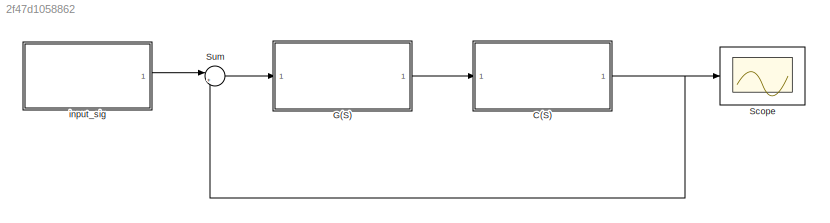
MODEL slx_2f47d1058862
KIND model
CONFIG AbsTol = auto
CONFIG EnableMultiTasking = off
CONFIG FixedStep = auto
CONFIG MaxStep = auto
CONFIG MinStep = auto
CONFIG RelTol = 1e-3
CONFIG SampleTimeConstraint = Unconstrained
CONFIG SolverName = VariableStepAuto
CONFIG StartTime = 0.0
CONFIG StopTime = 10.0
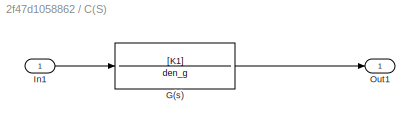
BLOCK [SubSystem] C(S)
  Ports = [1, 1]
  RequestExecContextInheritance = off
BLOCK [TransferFcn] C(S)/G(s)
  ContinuousStateAttributes = 'position'
  Denominator = den_g
  Numerator = [K1]
BLOCK [Inport] C(S)/In1
BLOCK [Outport] C(S)/Out1
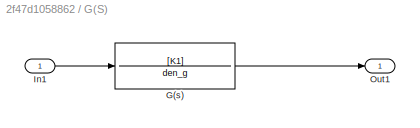
BLOCK [SubSystem] G(S)
  Ports = [1, 1]
  RequestExecContextInheritance = off
BLOCK [TransferFcn] G(S)/G(s)
  ContinuousStateAttributes = 'position'
  Denominator = den_g
  Numerator = [K1]
BLOCK [Inport] G(S)/In1
BLOCK [Outport] G(S)/Out1
BLOCK [Scope] Scope
  Floating = off
  NumInputPorts = 1
  Ports = [1]
  ScopeSpecificationString = Simulink.scopes.TimeScopeBlockCfg('CurrentConfiguration', extmgr.ConfigurationSet(extmgr.Configuration('Core','General UI',true),extmgr.Configuration('Core','Source UI',true),extmgr.Configuration('Sources','WiredSimulink',true,'DataLogging',true,'DataLoggingSaveFormat','Array'),extmgr.Configuration('Visuals','Time Domain',true,'SerializedDisplays',{struct('MinYLimReal','-0.20025','MaxYLimReal','1....<+1729ch>
BLOCK [Sum] Sum
  Inputs = |+-
  Ports = [2, 1]
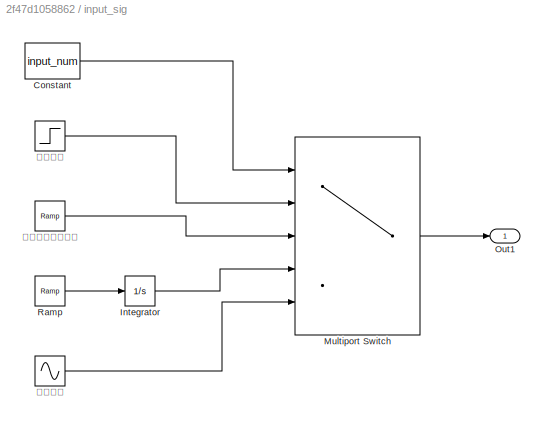
BLOCK [SubSystem] input_sig
  Ports = [0, 1]
  RequestExecContextInheritance = off
BLOCK [Constant] input_sig/Constant
  Value = input_num
BLOCK [Integrator] input_sig/Integrator
  Ports = [1, 1]
BLOCK [MultiPortSwitch] input_sig/Multiport Switch
  InputSameDT = off
  Inputs = 4
  Ports = [5, 1]
  SaturateOnIntegerOverflow = off
BLOCK [Outport] input_sig/Out1
BLOCK [Reference] input_sig/Ramp  REF=simulink/Sources/Ramp
  Ports = [0, 1]
  SourceBlock = simulink/Sources/Ramp
  SourceProductBaseCode = SL
  SourceType = Ramp
BLOCK [Reference] input_sig/斜坡（速度）输入  REF=simulink/Sources/Ramp
  Ports = [0, 1]
  SourceBlock = simulink/Sources/Ramp
  SourceProductBaseCode = SL
  SourceType = Ramp
BLOCK [Sin] input_sig/正弦输入
  Ports = [0, 1]
  SampleTime = 0
BLOCK [Step] input_sig/阶跃输入
  After = step_final
  Before = step_init
  SampleTime = 0
  Time = step_time
LINE C(S)/G(s):1 -> C(S)/Out1:1
LINE C(S)/In1:1 -> C(S)/G(s):1
NET C(S):1 -> Scope:1, Sum:2
LINE G(S)/G(s):1 -> G(S)/Out1:1
LINE G(S)/In1:1 -> G(S)/G(s):1
LINE G(S):1 -> C(S):1
LINE Sum:1 -> G(S):1
LINE input_sig/Constant:1 -> input_sig/Multiport Switch:1
LINE input_sig/Integrator:1 -> input_sig/Multiport Switch:4
LINE input_sig/Multiport Switch:1 -> input_sig/Out1:1
LINE input_sig/Ramp:1 -> input_sig/Integrator:1
LINE input_sig/斜坡（速度）输入:1 -> input_sig/Multiport Switch:3
LINE input_sig/正弦输入:1 -> input_sig/Multiport Switch:5
LINE input_sig/阶跃输入:1 -> input_sig/Multiport Switch:2
LINE input_sig:1 -> Sum:1
note: NET lines group one-source signal fan-out (src -> all destinations, sorted); 1:1 wires keep LINE
